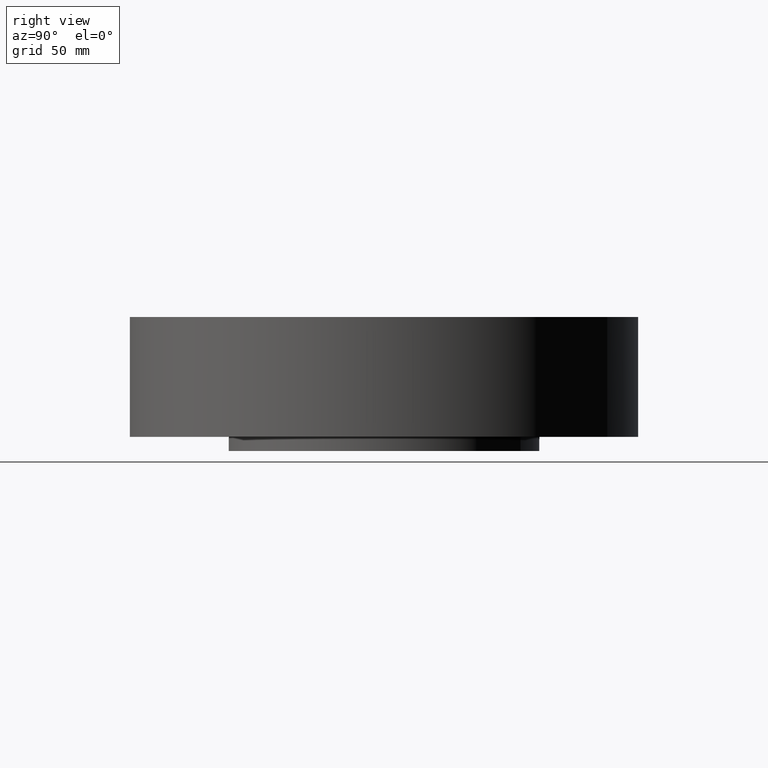
[diagram: clean part render]
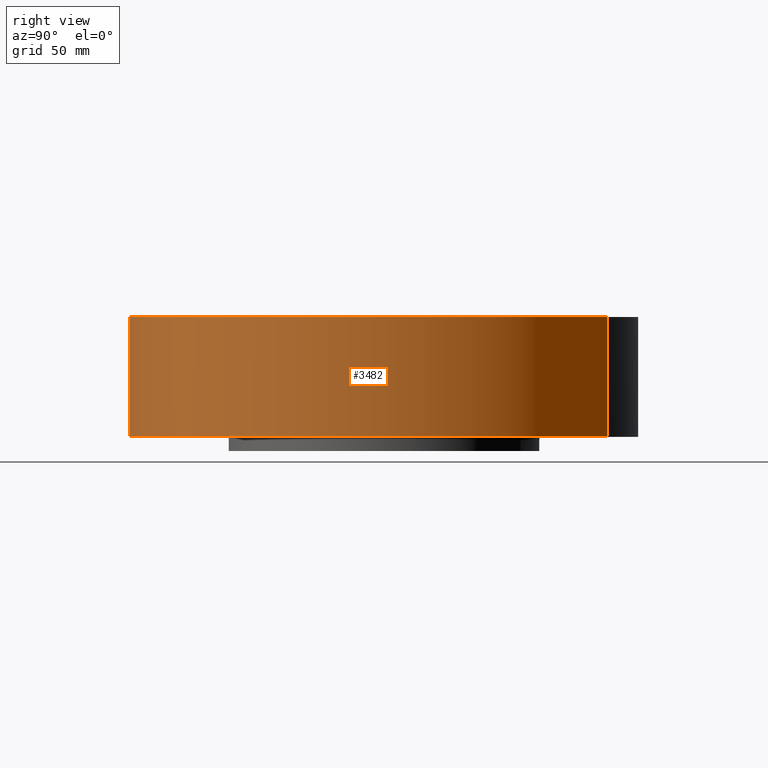
[diagram: same view with one face highlighted and labeled with its STEP entity id]
A machine part, right view. The second image highlights one B-rep face of the part: STEP entity #3482.
In plain terms, the highlighted cylindrical surface (partial cylindrical patch) has radius 114.3 mm, axis along (0, 0, -1).
Its self-contained STEP definition (entity closure, byte-faithful):
#3284=AXIS2_PLACEMENT_3D('Circle Axis2P3D',#3282,#3283,$) ;
#3443=AXIS2_PLACEMENT_3D('Cylinder Axis2P3D',#3440,#3441,#3442) ;
#3473=AXIS2_PLACEMENT_3D('Circle Axis2P3D',#3471,#3472,$) ;
#3277=CARTESIAN_POINT('Vertex',(-2.15741492373,-3.94912152852,-3.91637728372E-014)) ;
#3279=CARTESIAN_POINT('Vertex',(2.15741492373,3.94912152852,-3.91637728372E-014)) ;
#3282=CARTESIAN_POINT('Axis2P3D Location',(0.,0.,0.)) ;
#3440=CARTESIAN_POINT('Axis2P3D Location',(0.,0.,0.935000000004)) ;
#3445=CARTESIAN_POINT('Line Origine',(-2.15741492373,-3.94912152852,1.06)) ;
#3449=CARTESIAN_POINT('Vertex',(-2.15741492373,-3.94912152852,2.12000000001)) ;
#3456=CARTESIAN_POINT('Vertex',(2.15741492373,3.94912152852,2.12000000001)) ;
#3459=CARTESIAN_POINT('Line Origine',(2.15741492373,3.94912152852,1.06)) ;
#3471=CARTESIAN_POINT('Axis2P3D Location',(0.,0.,2.12000000001)) ;
#3283=DIRECTION('Axis2P3D Direction',(0.,0.,-0.0393700787402)) ;
#3441=DIRECTION('Axis2P3D Direction',(0.,0.,-0.0393700787402)) ;
#3442=DIRECTION('Axis2P3D XDirection',(0.0188750212049,0.0345504945626,0.)) ;
#3446=DIRECTION('Vector Direction',(0.,0.,-0.0393700787402)) ;
#3460=DIRECTION('Vector Direction',(0.,0.,-0.0393700787402)) ;
#3472=DIRECTION('Axis2P3D Direction',(0.,0.,-0.0393700787402)) ;
#3447=VECTOR('Line Direction',#3446,0.0393700787402) ;
#3461=VECTOR('Line Direction',#3460,0.0393700787402) ;
#3477=ORIENTED_EDGE('',*,*,#3286,.F.) ;
#3478=ORIENTED_EDGE('',*,*,#3463,.T.) ;
#3479=ORIENTED_EDGE('',*,*,#3475,.T.) ;
#3480=ORIENTED_EDGE('',*,*,#3451,.F.) ;
#3482=ADVANCED_FACE('PartBody',(#3481),#3444,.T.) ;
#3285=CIRCLE('generated circle',#3284,4.50000000002) ;
#3474=CIRCLE('generated circle',#3473,4.50000000002) ;
#3444=CYLINDRICAL_SURFACE('generated cylinder',#3443,4.50000000002) ;
#3286=EDGE_CURVE('',#3280,#3278,#3285,.T.) ;
#3451=EDGE_CURVE('',#3278,#3450,#3448,.F.) ;
#3463=EDGE_CURVE('',#3280,#3457,#3462,.F.) ;
#3475=EDGE_CURVE('',#3457,#3450,#3474,.T.) ;
#3476=EDGE_LOOP('',(#3477,#3478,#3479,#3480)) ;
#3481=FACE_OUTER_BOUND('',#3476,.T.) ;
#3448=LINE('Line',#3445,#3447) ;
#3462=LINE('Line',#3459,#3461) ;
#3278=VERTEX_POINT('',#3277) ;
#3280=VERTEX_POINT('',#3279) ;
#3450=VERTEX_POINT('',#3449) ;
#3457=VERTEX_POINT('',#3456) ;